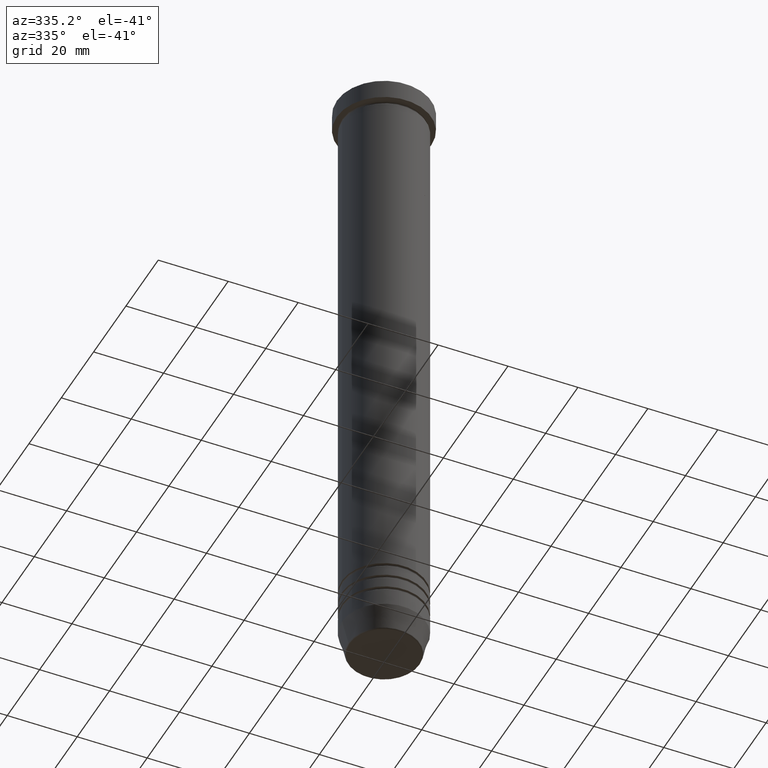
[diagram: clean part render]
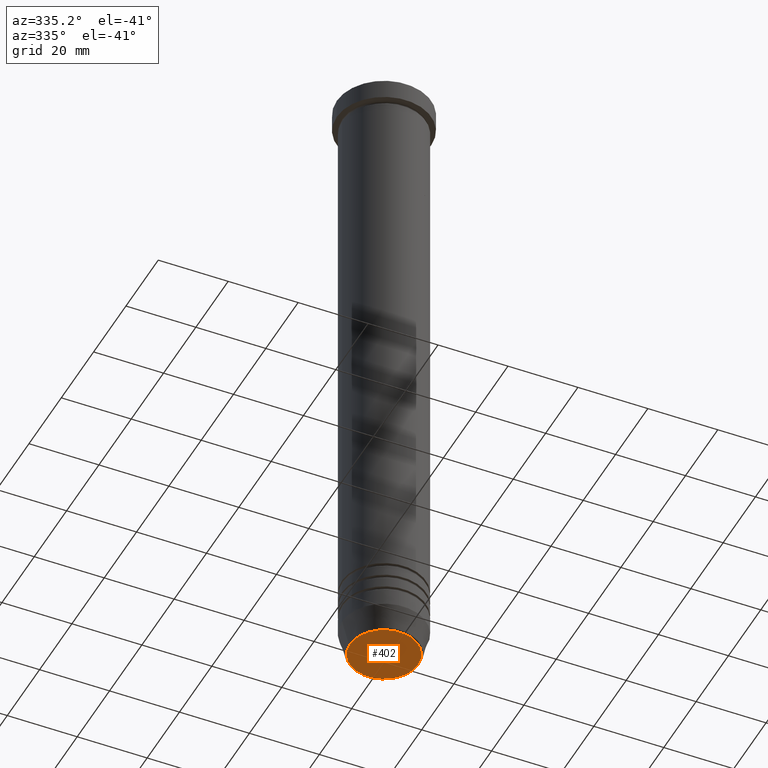
[diagram: same view with one face highlighted and labeled with its STEP entity id]
A machine part, auxiliary view. The second image highlights one B-rep face of the part: STEP entity #402.
In plain terms, the highlighted planar face has unit normal (0, -0, 1).
Its self-contained STEP definition (entity closure, byte-faithful):
#55 = AXIS2_PLACEMENT_3D ( 'NONE', #713, #980, #1058 ) ;
#135 = CIRCLE ( 'NONE', #782, 9.740692158992658278 ) ;
#140 = DIRECTION ( 'NONE',  ( 0.000000000000000000, 0.000000000000000000, -1.000000000000000000 ) ) ;
#173 = CARTESIAN_POINT ( 'NONE',  ( 0.000000000000000000, 0.000000000000000000, -186.0000000000000000 ) ) ;
#186 = DIRECTION ( 'NONE',  ( 1.000000000000000000, 0.000000000000000000, 0.000000000000000000 ) ) ;
#227 = DIRECTION ( 'NONE',  ( 1.000000000000000000, 0.000000000000000000, 0.000000000000000000 ) ) ;
#309 = VERTEX_POINT ( 'NONE', #1074 ) ;
#312 = CARTESIAN_POINT ( 'NONE',  ( 0.000000000000000000, 0.000000000000000000, -186.0000000000000000 ) ) ;
#402 = ADVANCED_FACE ( 'NONE', ( #701 ), #529, .F. ) ;
#403 = CIRCLE ( 'NONE', #1120, 9.740692158992658278 ) ;
#426 = EDGE_CURVE ( 'NONE', #1075, #309, #403, .T. ) ;
#526 = EDGE_LOOP ( 'NONE', ( #806, #816 ) ) ;
#529 = PLANE ( 'NONE',  #55 ) ;
#575 = CARTESIAN_POINT ( 'NONE',  ( 9.740692158992658278, 0.000000000000000000, -186.0000000000000000 ) ) ;
#628 = DIRECTION ( 'NONE',  ( 0.000000000000000000, 0.000000000000000000, -1.000000000000000000 ) ) ;
#701 = FACE_OUTER_BOUND ( 'NONE', #526, .T. ) ;
#713 = CARTESIAN_POINT ( 'NONE',  ( 0.000000000000000000, 1.549178200921401833E-14, -186.0000000000000000 ) ) ;
#782 = AXIS2_PLACEMENT_3D ( 'NONE', #312, #140, #227 ) ;
#806 = ORIENTED_EDGE ( 'NONE', *, *, #426, .T. ) ;
#809 = EDGE_CURVE ( 'NONE', #309, #1075, #135, .T. ) ;
#816 = ORIENTED_EDGE ( 'NONE', *, *, #809, .T. ) ;
#980 = DIRECTION ( 'NONE',  ( 0.000000000000000000, -0.000000000000000000, 1.000000000000000000 ) ) ;
#1058 = DIRECTION ( 'NONE',  ( 1.000000000000000000, 0.000000000000000000, 0.000000000000000000 ) ) ;
#1074 = CARTESIAN_POINT ( 'NONE',  ( -9.740692158992658278, 1.222463696683474999E-15, -186.0000000000000000 ) ) ;
#1075 = VERTEX_POINT ( 'NONE', #575 ) ;
#1120 = AXIS2_PLACEMENT_3D ( 'NONE', #173, #628, #186 ) ;